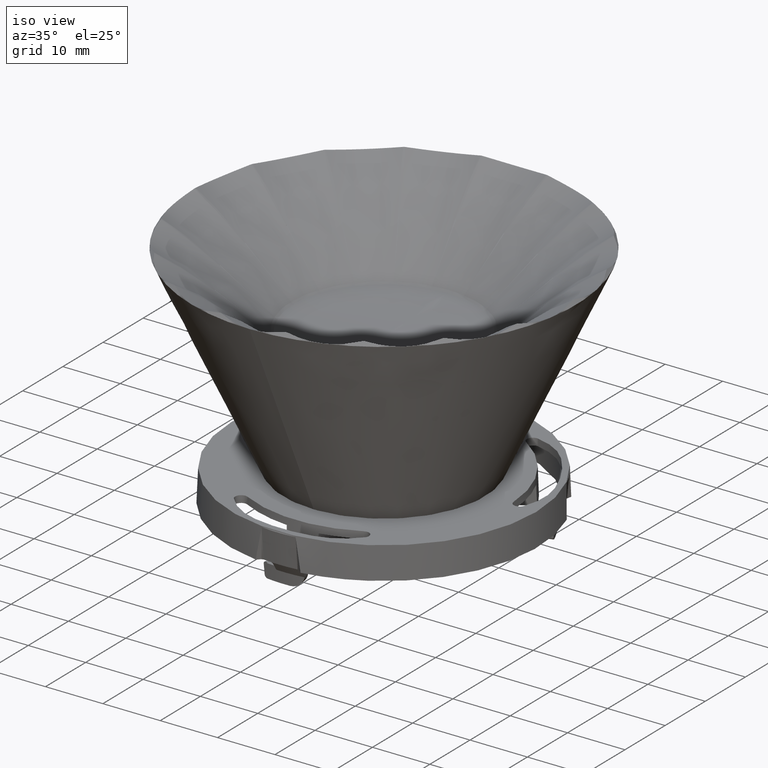
[diagram: clean part render]
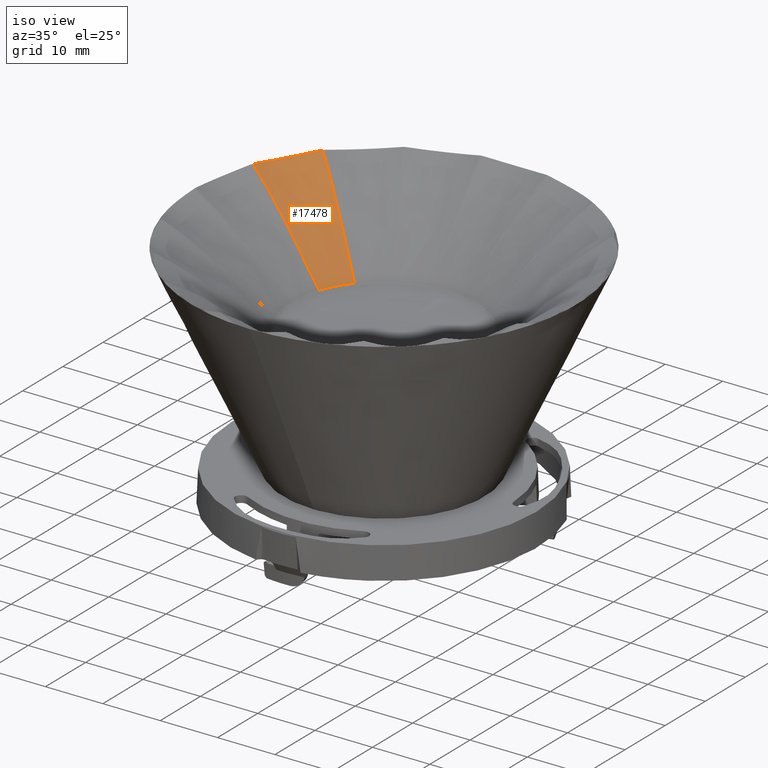
[diagram: same view with one face highlighted and labeled with its STEP entity id]
A machine part, iso view. The second image highlights one B-rep face of the part: STEP entity #17478.
In plain terms, the highlighted face is a freeform B-spline surface patch.
Its self-contained STEP definition (entity closure, byte-faithful):
#94 = CARTESIAN_POINT ( 'NONE',  ( 12.42525024583878900, 30.73278545014382200, 39.39169620777969500 ) ) ;
#123 = CARTESIAN_POINT ( 'NONE',  ( 10.38015233103680200, 12.38779858571428200, 26.16992384845452000 ) ) ;
#149 = CARTESIAN_POINT ( 'NONE',  ( 5.925900271179039600, 15.14324708430362600, 25.52200795356891300 ) ) ;
#420 = CARTESIAN_POINT ( 'NONE',  ( 10.38216904697213900, 12.39025563202102900, 26.17286433669428900 ) ) ;
#522 = CARTESIAN_POINT ( 'NONE',  ( 18.60608498136150100, 22.47217101043766600, 37.17370384387685800 ) ) ;
#663 = CARTESIAN_POINT ( 'NONE',  ( 5.538626927733484500, 15.18484932651970000, 26.17138114944854600 ) ) ;
#1031 = EDGE_CURVE ( 'NONE', #13195, #20320, #25995, .T. ) ;
#1496 = EDGE_LOOP ( 'NONE', ( #4769, #3658, #6710, #4207, #5520, #2574, #9761 ) ) ;
#1655 = CARTESIAN_POINT ( 'NONE',  ( 5.537527149718405500, 15.18192669694649900, 26.16849243447707400 ) ) ;
#1802 = CARTESIAN_POINT ( 'NONE',  ( 11.51681381675651700, 30.88783965021211500, 39.57747294531499400 ) ) ;
#2014 = CARTESIAN_POINT ( 'NONE',  ( 11.51681381675651700, 30.88783965021211500, 39.57747294531499400 ) ) ;
#2115 = B_SPLINE_CURVE_WITH_KNOTS ( 'NONE', 3,
 ( #2014, #17808, #8793, #24606, #11074, #26880, #13354, #29136, #15619, #2116, #17908, #4383 ),
 .UNSPECIFIED., .F., .F.,
 ( 4, 2, 2, 2, 2, 4 ),
 ( 4.563344992840995700E-017, 0.002696108052247249900, 0.005392216104494454800, 0.01078443220898886300, 0.01617664831348327200, 0.02156886441797768400 ),
 .UNSPECIFIED. ) ;
#2116 = CARTESIAN_POINT ( 'NONE',  ( 6.471657711258157700, 17.66101559140177500, 28.60087182039681200 ) ) ;
#2328 = CARTESIAN_POINT ( 'NONE',  ( 11.79994159469487900, 31.50600102070117000, 39.91534054620613100 ) ) ;
#2404 = CARTESIAN_POINT ( 'NONE',  ( 10.38115180553813300, 12.38901628476179600, 26.17138114944854600 ) ) ;
#2574 = ORIENTED_EDGE ( 'NONE', *, *, #13557, .T. ) ;
#2805 = CARTESIAN_POINT ( 'NONE',  ( 20.01134211646532200, 24.20679148394940200, 38.67847214837316000 ) ) ;
#2865 = CARTESIAN_POINT ( 'NONE',  ( 5.539191613226947200, 15.18634995707298800, 26.17286433669428200 ) ) ;
#2944 = CARTESIAN_POINT ( 'NONE',  ( 5.538072106674766500, 15.18337490668717200, 26.16992384845433500 ) ) ;
#3658 = ORIENTED_EDGE ( 'NONE', *, *, #4405, .T. ) ;
#4207 = ORIENTED_EDGE ( 'NONE', *, *, #24495, .F. ) ;
#4376 =( BOUNDED_SURFACE ( )  B_SPLINE_SURFACE ( 3, 3, ( 
 ( #23773, #18536, #15849, #2328 ),
 ( #18133, #4603, #20383, #6837 ),
 ( #22654, #9116, #24922, #11396 ),
 ( #27193, #13659, #149, #15939 ) ),
 .UNSPECIFIED., .F., .F., .F. ) 
 B_SPLINE_SURFACE_WITH_KNOTS ( ( 4, 4 ),
 ( 4, 4 ),
 ( -0.006001208993497128400, 1.006202707909610700 ),
 ( 0.0000000000000000000, 1.000000000000000000 ),
 .UNSPECIFIED. ) 
 GEOMETRIC_REPRESENTATION_ITEM ( )  RATIONAL_B_SPLINE_SURFACE ( (
 ( 1.000000000000000000, 0.9606782896633679900, 0.9606782896633679900, 1.000000000000000000),
 ( 1.000000000000000000, 0.9606782896633679900, 0.9606782896633679900, 1.000000000000000000),
 ( 1.000000000000000000, 0.9606782896633679900, 0.9606782896633679900, 1.000000000000000000),
 ( 1.000000000000000000, 0.9606782896633679900, 0.9606782896633679900, 1.000000000000000000) ) ) 
 REPRESENTATION_ITEM ( '' )  SURFACE ( )  );
#4383 = CARTESIAN_POINT ( 'NONE',  ( 5.539191613226947200, 15.18634995707298800, 26.17286433669428200 ) ) ;
#4405 = EDGE_CURVE ( 'NONE', #24541, #13195, #9317, .T. ) ;
#4603 = CARTESIAN_POINT ( 'NONE',  ( 15.91713294763364300, 23.75826848640471000, 36.45322378364722500 ) ) ;
#4672 = CARTESIAN_POINT ( 'NONE',  ( 10.38216904697213900, 12.39025563202102900, 26.17286433669428900 ) ) ;
#4715 = CARTESIAN_POINT ( 'NONE',  ( 16.75000000000037700, 29.01185102677849400, 39.00000000000000000 ) ) ;
#4769 = ORIENTED_EDGE ( 'NONE', *, *, #19321, .T. ) ;
#4813 = CARTESIAN_POINT ( 'NONE',  ( 19.39091030004290400, 27.09770811102048100, 39.19669548175524200 ) ) ;
#5063 = CARTESIAN_POINT ( 'NONE',  ( 20.99124689672633800, 25.41777316107230400, 39.57747294531501600 ) ) ;
#5072 = CARTESIAN_POINT ( 'NONE',  ( 20.99124689672633800, 25.41777316107230400, 39.57747294531501600 ) ) ;
#5205 = CARTESIAN_POINT ( 'NONE',  ( 5.537527149718405500, 15.18192669694649900, 26.16849243447707400 ) ) ;
#5351 = CARTESIAN_POINT ( 'NONE',  ( 6.422292565279404300, 14.85212128215547600, 26.16786625023263100 ) ) ;
#5520 = ORIENTED_EDGE ( 'NONE', *, *, #17148, .F. ) ;
#5631 = B_SPLINE_CURVE_WITH_KNOTS ( 'NONE', 3,
 ( #4715, #6962, #18342, #4813, #20587, #7061, #22861, #9325 ),
 .UNSPECIFIED., .F., .F.,
 ( 4, 2, 2, 4 ),
 ( 0.006293022731888959700, 0.009091577228798339600, 0.01049085447725303100, 0.01189013172570772500 ),
 .UNSPECIFIED. ) ;
#6159 = VERTEX_POINT ( 'NONE', #1655 ) ;
#6710 = ORIENTED_EDGE ( 'NONE', *, *, #1031, .T. ) ;
#6837 = CARTESIAN_POINT ( 'NONE',  ( 9.238449878239491000, 26.98494121790152500, 37.62189637564068100 ) ) ;
#6962 = CARTESIAN_POINT ( 'NONE',  ( 17.55783272044508400, 28.54544858817011700, 38.99999999999970900 ) ) ;
#7061 = CARTESIAN_POINT ( 'NONE',  ( 20.38651999634902300, 26.11625913248414900, 39.40168978859171000 ) ) ;
#7106 = VERTEX_POINT ( 'NONE', #2865 ) ;
#7209 = CARTESIAN_POINT ( 'NONE',  ( 11.21817224695732100, 13.40879342816767800, 27.39179222316699800 ) ) ;
#7255 = CARTESIAN_POINT ( 'NONE',  ( 5.538909269673408400, 15.18559964027064300, 26.17212274492224500 ) ) ;
#7607 = CARTESIAN_POINT ( 'NONE',  ( 7.694489926778492100, 14.24757604220592100, 26.16776941795490100 ) ) ;
#7740 = EDGE_CURVE ( 'NONE', #7106, #6159, #25830, .T. ) ;
#8424 = VERTEX_POINT ( 'NONE', #1802 ) ;
#8793 = CARTESIAN_POINT ( 'NONE',  ( 10.95804323491296000, 29.43377303506072800, 38.67850278280689500 ) ) ;
#9116 = CARTESIAN_POINT ( 'NONE',  ( 12.69660457652914200, 17.63069728563361200, 30.59303536741769100 ) ) ;
#9317 = B_SPLINE_CURVE_WITH_KNOTS ( 'NONE', 3,
 ( #18104, #27161, #123, #15912, #2404, #18194, #4672 ),
 .UNSPECIFIED., .F., .F.,
 ( 4, 3, 4 ),
 ( 8.734397301235164900E-016, 3.161847547209343100E-006, 6.438105150354757400E-006 ),
 .UNSPECIFIED. ) ;
#9325 = CARTESIAN_POINT ( 'NONE',  ( 20.99124689672633800, 25.41777316107230400, 39.57747294531501600 ) ) ;
#9334 = CARTESIAN_POINT ( 'NONE',  ( 14.63606866779892400, 30.03389962208170200, 39.10028349377255100 ) ) ;
#9375 = CARTESIAN_POINT ( 'NONE',  ( 10.38216904697213900, 12.39025563202102900, 26.17286433669428900 ) ) ;
#9484 = CARTESIAN_POINT ( 'NONE',  ( 12.05897667563366000, 14.43502692042948100, 28.60075309134808600 ) ) ;
#9761 = ORIENTED_EDGE ( 'NONE', *, *, #7740, .T. ) ;
#9864 = CARTESIAN_POINT ( 'NONE',  ( 9.665944494536603300, 13.00373194018756500, 26.16752373881133700 ) ) ;
#11074 = CARTESIAN_POINT ( 'NONE',  ( 10.15847108297810000, 27.34953892255772300, 37.17378846390455000 ) ) ;
#11396 = CARTESIAN_POINT ( 'NONE',  ( 5.055023390730981200, 21.32257506775612700, 31.93020115272948800 ) ) ;
#11629 = CARTESIAN_POINT ( 'NONE',  ( 15.92942344766069800, 29.46109076188608700, 39.01239963672484400 ) ) ;
#11758 = CARTESIAN_POINT ( 'NONE',  ( 14.61404657453323400, 17.56178677794567700, 32.16117927166904900 ) ) ;
#11901 = CARTESIAN_POINT ( 'NONE',  ( 5.539191613226947200, 15.18634995707298800, 26.17286433669428200 ) ) ;
#12548 = B_SPLINE_CURVE_WITH_KNOTS ( 'NONE', 3,
 ( #14300, #27824, #5351, #21138, #7607, #23403, #9864, #25660 ),
 .UNSPECIFIED., .F., .F.,
 ( 4, 2, 2, 4 ),
 ( 1.104232114499644500E-005, 0.001425427650097919700, 0.002839812979050843200, 0.005668583636956691900 ),
 .UNSPECIFIED. ) ;
#13195 = VERTEX_POINT ( 'NONE', #9375 ) ;
#13354 = CARTESIAN_POINT ( 'NONE',  ( 8.883759101282128900, 24.01631625771680600, 34.45780362768258000 ) ) ;
#13557 = EDGE_CURVE ( 'NONE', #8424, #7106, #2115, .T. ) ;
#13659 = CARTESIAN_POINT ( 'NONE',  ( 10.15148653520240700, 12.70360371728568100, 25.52200795356891700 ) ) ;
#13880 = CARTESIAN_POINT ( 'NONE',  ( 16.75000000000037700, 29.01185102677849400, 39.00000000000000000 ) ) ;
#14025 = CARTESIAN_POINT ( 'NONE',  ( 17.24137738177548200, 20.78996711846958300, 35.57887375259885200 ) ) ;
#14300 = CARTESIAN_POINT ( 'NONE',  ( 5.537527149718405500, 15.18192669694649900, 26.16849243447707400 ) ) ;
#15154 = FACE_OUTER_BOUND ( 'NONE', #1496, .T. ) ;
#15619 = CARTESIAN_POINT ( 'NONE',  ( 7.421077496838293500, 20.16996460110102200, 30.98543759750310800 ) ) ;
#15849 = CARTESIAN_POINT ( 'NONE',  ( 15.20415666831169500, 30.17468021350037300, 38.73768479129415700 ) ) ;
#15912 = CARTESIAN_POINT ( 'NONE',  ( 10.38064318757404800, 12.38839661551601900, 26.17063955027452900 ) ) ;
#15939 = CARTESIAN_POINT ( 'NONE',  ( 1.600689945688800400, 16.83475081638922100, 27.01827323671582400 ) ) ;
#15982 = B_SPLINE_CURVE_WITH_KNOTS ( 'NONE', 3,
 ( #18359, #94, #22873, #9334, #25139, #11629, #27396, #13880 ),
 .UNSPECIFIED., .F., .F.,
 ( 4, 2, 2, 4 ),
 ( 0.0006889866361425764900, 0.003491004684015766600, 0.004892013707952360500, 0.006293022731888959700 ),
 .UNSPECIFIED. ) ;
#16314 = CARTESIAN_POINT ( 'NONE',  ( 19.06751054391193600, 23.04145535999910900, 37.69070179533034800 ) ) ;
#16444 = CARTESIAN_POINT ( 'NONE',  ( 5.538344587406738700, 15.18409901581909500, 26.17063955027452900 ) ) ;
#17148 = EDGE_CURVE ( 'NONE', #8424, #20004, #15982, .T. ) ;
#17478 = ADVANCED_FACE ( 'NONE', ( #15154 ), #4376, .F. ) ;
#17808 = CARTESIAN_POINT ( 'NONE',  ( 11.23298414247998300, 30.14939348226048200, 39.14997181280909200 ) ) ;
#17908 = CARTESIAN_POINT ( 'NONE',  ( 6.003274503787321400, 16.41963184400942300, 27.39180505226043000 ) ) ;
#18104 = CARTESIAN_POINT ( 'NONE',  ( 10.37917062308948200, 12.38660253427556800, 26.16849243447707000 ) ) ;
#18133 = CARTESIAN_POINT ( 'NONE',  ( 18.75041967521328700, 21.49320289509496700, 37.62189637564068800 ) ) ;
#18194 = CARTESIAN_POINT ( 'NONE',  ( 10.38166042533728400, 12.38963595692980500, 26.17212274492225200 ) ) ;
#18342 = CARTESIAN_POINT ( 'NONE',  ( 18.31897579887963800, 28.00852047009437800, 39.04932132822854400 ) ) ;
#18359 = CARTESIAN_POINT ( 'NONE',  ( 11.51681381675651700, 30.88783965021211500, 39.57747294531499400 ) ) ;
#18536 = CARTESIAN_POINT ( 'NONE',  ( 18.52996128180781800, 28.25452602462623400, 38.73768479129415700 ) ) ;
#18573 = CARTESIAN_POINT ( 'NONE',  ( 20.49363238405433300, 24.80272633460913700, 39.14995788715547300 ) ) ;
#18723 = CARTESIAN_POINT ( 'NONE',  ( 5.537799627445425100, 15.18265080039619400, 26.16920814318773100 ) ) ;
#19321 = EDGE_CURVE ( 'NONE', #6159, #24541, #12548, .T. ) ;
#20004 = VERTEX_POINT ( 'NONE', #25320 ) ;
#20320 = VERTEX_POINT ( 'NONE', #5072 ) ;
#20383 = CARTESIAN_POINT ( 'NONE',  ( 12.61669758534154300, 25.66377573126706200, 36.45322378364722500 ) ) ;
#20587 = CARTESIAN_POINT ( 'NONE',  ( 19.73441552933561000, 26.77805425229009000, 39.25791114431259400 ) ) ;
#21138 = CARTESIAN_POINT ( 'NONE',  ( 7.278506607429988200, 14.46191825911731300, 26.16774967274440700 ) ) ;
#22654 = CARTESIAN_POINT ( 'NONE',  ( 15.93837998741239700, 15.03906620697524800, 31.93020115272950200 ) ) ;
#22861 = CARTESIAN_POINT ( 'NONE',  ( 20.69652752028224900, 25.77294031845657000, 39.48443626080091900 ) ) ;
#22873 = CARTESIAN_POINT ( 'NONE',  ( 13.31907321544869300, 30.50240262013560900, 39.24762166755336800 ) ) ;
#23403 = CARTESIAN_POINT ( 'NONE',  ( 8.906313887233581600, 13.54721619008163800, 26.16776932479217200 ) ) ;
#23773 = CARTESIAN_POINT ( 'NONE',  ( 21.38502645823886500, 25.97204969452847900, 39.91534054620614600 ) ) ;
#24495 = EDGE_CURVE ( 'NONE', #20004, #20320, #5631, .T. ) ;
#24541 = VERTEX_POINT ( 'NONE', #27478 ) ;
#24606 = CARTESIAN_POINT ( 'NONE',  ( 10.42076499077155400, 28.03376635516901400, 37.69076768609794900 ) ) ;
#24922 = CARTESIAN_POINT ( 'NONE',  ( 8.920329447527986800, 19.81093074789658500, 30.59303536741768800 ) ) ;
#25139 = CARTESIAN_POINT ( 'NONE',  ( 15.07303619150541800, 29.85623529435134000, 39.06258013692405500 ) ) ;
#25283 = CARTESIAN_POINT ( 'NONE',  ( 13.75700567442927300, 16.51163135619518100, 30.98521938616695700 ) ) ;
#25320 = CARTESIAN_POINT ( 'NONE',  ( 16.75000000000037700, 29.01185102677849400, 39.00000000000000000 ) ) ;
#25660 = CARTESIAN_POINT ( 'NONE',  ( 10.37917062308948200, 12.38660253427556800, 26.16849243447707000 ) ) ;
#25830 = B_SPLINE_CURVE_WITH_KNOTS ( 'NONE', 3,
 ( #11901, #7255, #663, #16444, #2944, #18723, #5205 ),
 .UNSPECIFIED., .F., .F.,
 ( 4, 3, 4 ),
 ( 0.0000000000000000000, 3.276257603131942200E-006, 6.438105149458328900E-006 ),
 .UNSPECIFIED. ) ;
#25995 = B_SPLINE_CURVE_WITH_KNOTS ( 'NONE', 3,
 ( #420, #7209, #9484, #25283, #11758, #27546, #14025, #522, #16314, #2805, #18573, #5063 ),
 .UNSPECIFIED., .F., .F.,
 ( 4, 2, 2, 2, 2, 4 ),
 ( 4.249187360970369500E-018, 0.005385063649366617600, 0.01077012729873323000, 0.01615519094809984500, 0.01884772277278315100, 0.02154025459746645700 ),
 .UNSPECIFIED. ) ;
#26880 = CARTESIAN_POINT ( 'NONE',  ( 9.384017141413878000, 25.32662742315546500, 35.57901620695951600 ) ) ;
#27161 = CARTESIAN_POINT ( 'NONE',  ( 10.37966147620871600, 12.38720055863421600, 26.16920814318810400 ) ) ;
#27193 = CARTESIAN_POINT ( 'NONE',  ( 13.77897690052976300, 9.803613564743082900, 27.01827323671583900 ) ) ;
#27396 = CARTESIAN_POINT ( 'NONE',  ( 16.34558374423167500, 29.24534086091092500, 39.00000000000014200 ) ) ;
#27478 = CARTESIAN_POINT ( 'NONE',  ( 10.37917062308948200, 12.38660253427556800, 26.16849243447707000 ) ) ;
#27546 = CARTESIAN_POINT ( 'NONE',  ( 16.35670663388629000, 19.70153007274096200, 34.45760702637954200 ) ) ;
#27824 = CARTESIAN_POINT ( 'NONE',  ( 5.983246233363889400, 15.02730796975009900, 26.16800788261275600 ) ) ;
#29136 = CARTESIAN_POINT ( 'NONE',  ( 7.902029878859122100, 21.43729132416934400, 32.16141906383514700 ) ) ;